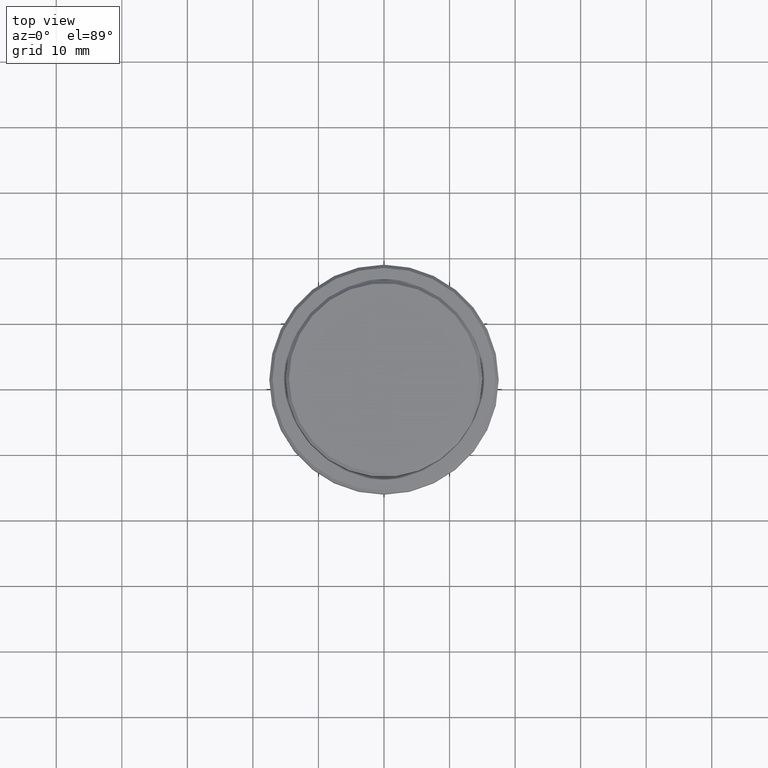
[diagram: clean part render]
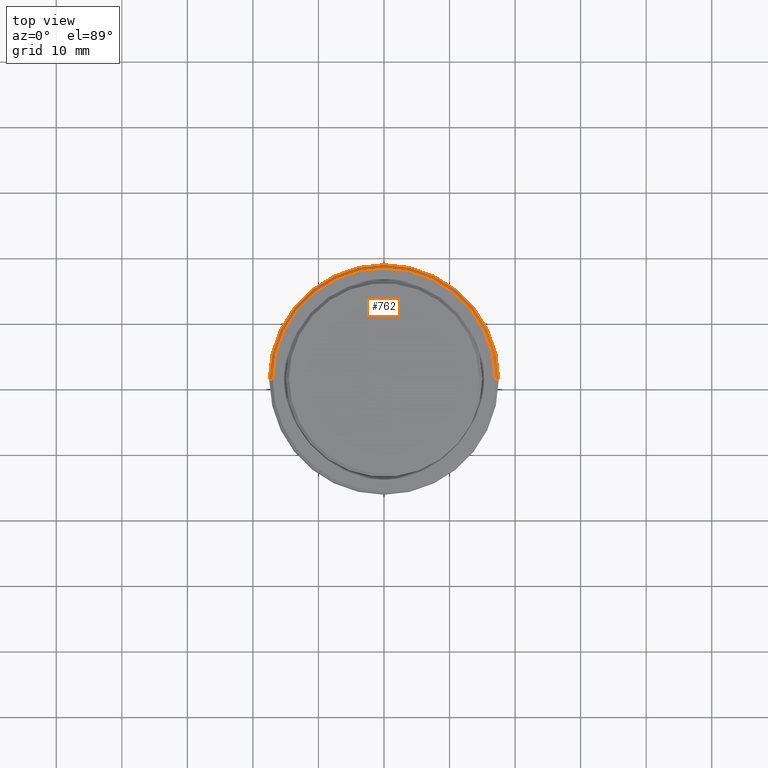
[diagram: same view with one face highlighted and labeled with its STEP entity id]
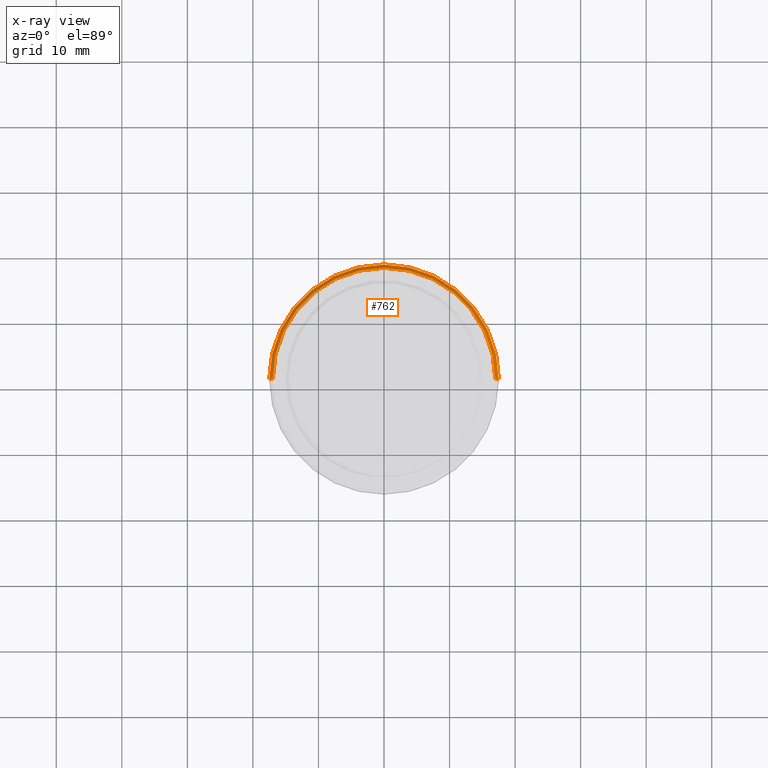
[diagram: x-ray of the same camera — body ghosted, the highlighted face saturated]
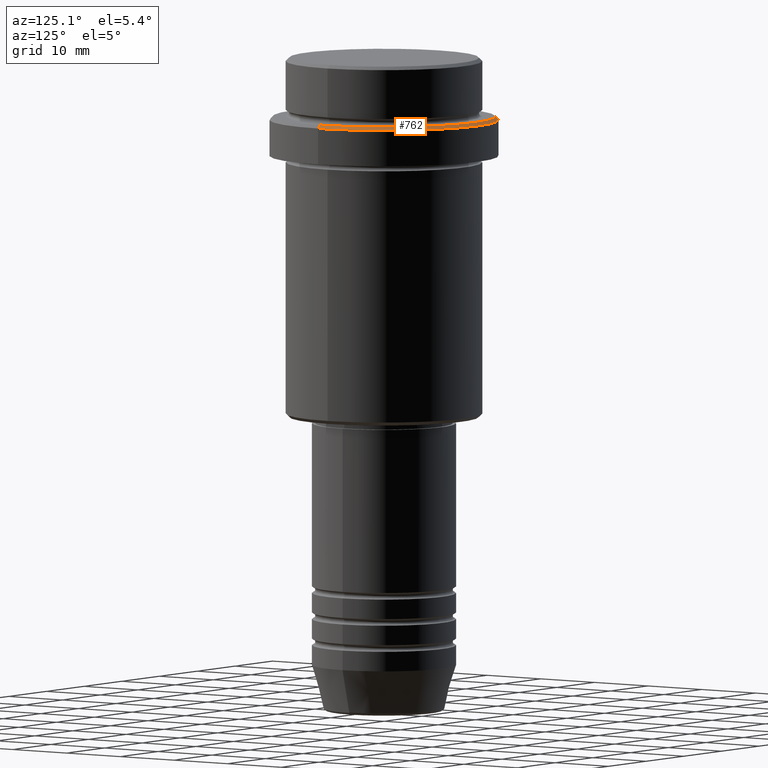
[diagram: same view with one face highlighted and labeled with its STEP entity id]
A machine part, top view. The second image highlights one B-rep face of the part: STEP entity #762.
The next image is the same camera in x-ray: the body ghosted, the highlighted face saturated — about 0% of this face is hidden behind the body in this view.
A second angle (auxiliary view) of the same face is appended — the face is thin or edge-on in the first view.
In plain terms, the highlighted conical surface has half-angle 45 deg.
Its self-contained STEP definition (entity closure, byte-faithful):
#43 = ORIENTED_EDGE ( 'NONE', *, *, #588, .T. ) ;
#95 = LINE ( 'NONE', #1125, #1093 ) ;
#102 = DIRECTION ( 'NONE',  ( 1.000000000000000000, 0.000000000000000000, 0.000000000000000000 ) ) ;
#131 = VERTEX_POINT ( 'NONE', #1337 ) ;
#146 = AXIS2_PLACEMENT_3D ( 'NONE', #1241, #1151, #148 ) ;
#148 = DIRECTION ( 'NONE',  ( -1.000000000000000000, 0.000000000000000000, 0.000000000000000000 ) ) ;
#160 = VERTEX_POINT ( 'NONE', #935 ) ;
#176 = CARTESIAN_POINT ( 'NONE',  ( -17.50000000000000000, 2.143131898507868248E-15, -9.500000000000026645 ) ) ;
#211 = EDGE_CURVE ( 'NONE', #960, #160, #984, .T. ) ;
#221 = VECTOR ( 'NONE', #351, 1000.000000000000114 ) ;
#259 = EDGE_CURVE ( 'NONE', #131, #498, #384, .T. ) ;
#351 = DIRECTION ( 'NONE',  ( 0.7071067811865474617, 8.659560562354932858E-17, -0.7071067811865474617 ) ) ;
#359 = AXIS2_PLACEMENT_3D ( 'NONE', #866, #426, #102 ) ;
#384 = CIRCLE ( 'NONE', #1050, 16.99999999999997513 ) ;
#394 = DIRECTION ( 'NONE',  ( 1.000000000000000000, 0.000000000000000000, 0.000000000000000000 ) ) ;
#423 = CARTESIAN_POINT ( 'NONE',  ( -16.99999999999997513, 0.000000000000000000, -9.000000000000000000 ) ) ;
#426 = DIRECTION ( 'NONE',  ( 0.000000000000000000, 0.000000000000000000, -1.000000000000000000 ) ) ;
#498 = VERTEX_POINT ( 'NONE', #423 ) ;
#552 = DIRECTION ( 'NONE',  ( -0.7071067811865474617, 0.000000000000000000, -0.7071067811865474617 ) ) ;
#561 = ORIENTED_EDGE ( 'NONE', *, *, #211, .F. ) ;
#588 = EDGE_CURVE ( 'NONE', #131, #160, #1330, .T. ) ;
#704 = FACE_OUTER_BOUND ( 'NONE', #806, .T. ) ;
#762 = ADVANCED_FACE ( 'NONE', ( #704 ), #1168, .T. ) ;
#806 = EDGE_LOOP ( 'NONE', ( #1025, #43, #561, #1063 ) ) ;
#866 = CARTESIAN_POINT ( 'NONE',  ( 0.000000000000000000, 0.000000000000000000, -9.500000000000026645 ) ) ;
#935 = CARTESIAN_POINT ( 'NONE',  ( 17.50000000000000000, 0.000000000000000000, -9.500000000000026645 ) ) ;
#960 = VERTEX_POINT ( 'NONE', #176 ) ;
#984 = CIRCLE ( 'NONE', #359, 17.50000000000000000 ) ;
#1025 = ORIENTED_EDGE ( 'NONE', *, *, #259, .F. ) ;
#1050 = AXIS2_PLACEMENT_3D ( 'NONE', #1199, #1269, #394 ) ;
#1063 = ORIENTED_EDGE ( 'NONE', *, *, #1115, .F. ) ;
#1093 = VECTOR ( 'NONE', #552, 1000.000000000000114 ) ;
#1115 = EDGE_CURVE ( 'NONE', #498, #960, #95, .T. ) ;
#1125 = CARTESIAN_POINT ( 'NONE',  ( -16.99999999999997513, 0.000000000000000000, -9.000000000000000000 ) ) ;
#1151 = DIRECTION ( 'NONE',  ( 0.000000000000000000, 0.000000000000000000, -1.000000000000000000 ) ) ;
#1168 = CONICAL_SURFACE ( 'NONE', #146, 16.99999999999997513, 0.7853981633974482790 ) ;
#1199 = CARTESIAN_POINT ( 'NONE',  ( 0.000000000000000000, 0.000000000000000000, -9.000000000000000000 ) ) ;
#1232 = CARTESIAN_POINT ( 'NONE',  ( 16.99999999999997513, 2.081899558550497519E-15, -9.000000000000000000 ) ) ;
#1241 = CARTESIAN_POINT ( 'NONE',  ( 0.000000000000000000, 0.000000000000000000, -9.000000000000000000 ) ) ;
#1269 = DIRECTION ( 'NONE',  ( -0.000000000000000000, -0.000000000000000000, 1.000000000000000000 ) ) ;
#1330 = LINE ( 'NONE', #1232, #221 ) ;
#1337 = CARTESIAN_POINT ( 'NONE',  ( 16.99999999999997513, 2.112515728529182883E-15, -9.000000000000000000 ) ) ;